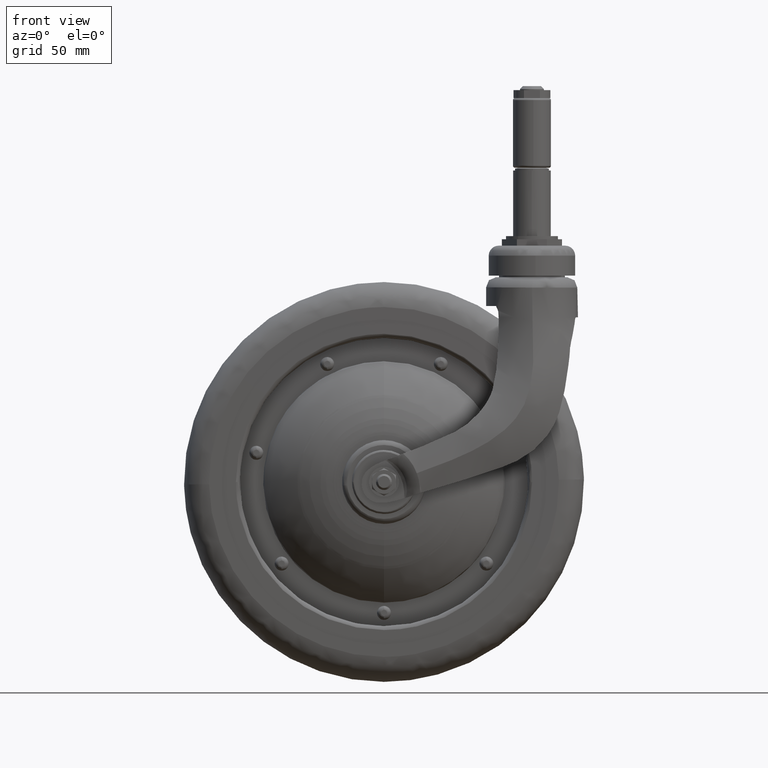
[diagram: clean part render]
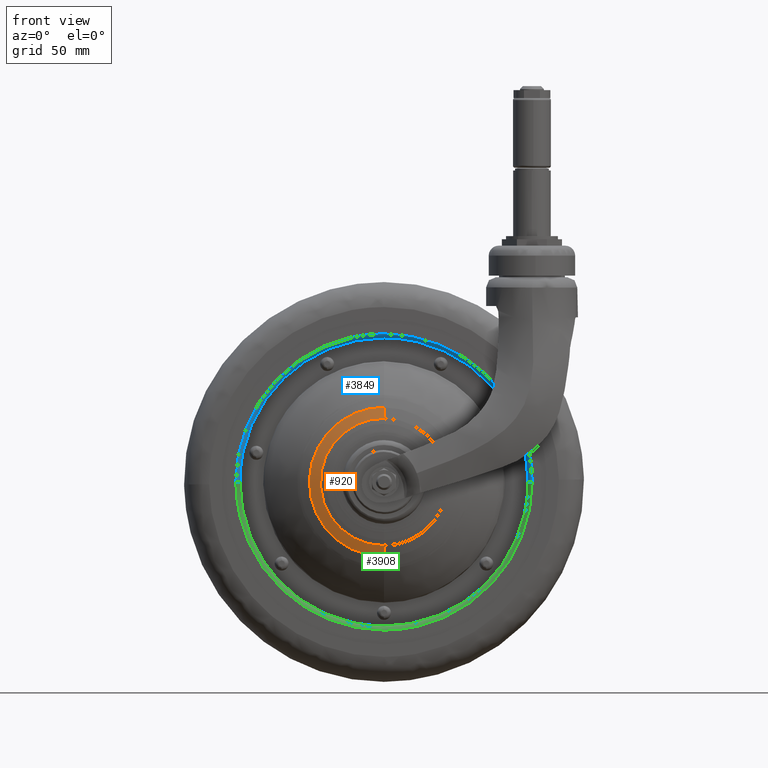
[diagram: same view with three faces highlighted in distinct colors, each labeled with its STEP entity id]
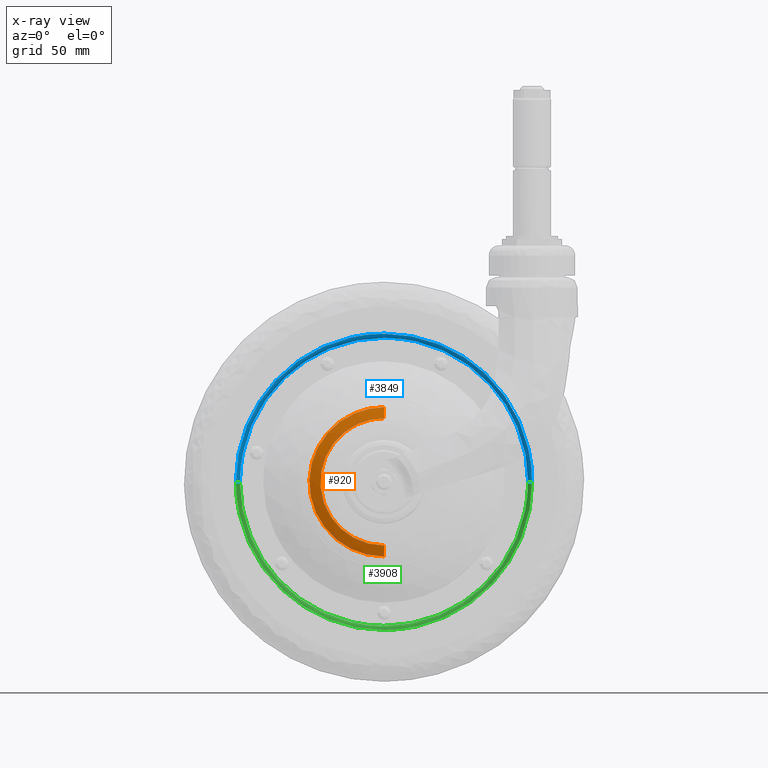
[diagram: x-ray of the same camera — body ghosted, the three highlighted faces saturated]
A machine part, front view with three faces highlighted in distinct colors.
The next image is the same camera in x-ray (body ghosted, the three faces saturated) — at least one of them is partly hidden behind the body in this view.
Their STEP definitions:

[orange] entity #920 — the highlighted face is a freeform B-spline surface patch.
#727=CARTESIAN_POINT('',(0.0,-18.791712680799609,-31.816196024862339));
#728=VERTEX_POINT('',#727);
#743=CARTESIAN_POINT('',(0.0,-18.791712680799609,31.816196024862361));
#744=VERTEX_POINT('',#743);
#758=CARTESIAN_POINT('',(0.0,-18.791712680799609,-31.816196024862339));
#759=CARTESIAN_POINT('',(-2.212513316422858,-18.791712680799620,-31.816554168403272));
#760=CARTESIAN_POINT('',(-5.986633969344221,-18.791712680799620,-31.420779989774829));
#761=CARTESIAN_POINT('',(-11.877662726293281,-18.791712680799620,-29.712815532711360));
#762=CARTESIAN_POINT('',(-16.789912130069421,-18.791712680799620,-27.240036879803711));
#763=CARTESIAN_POINT('',(-21.567377517333838,-18.791712680799620,-23.604990580087740));
#764=CARTESIAN_POINT('',(-25.483861686683380,-18.791712680799630,-19.389328205891410));
#765=CARTESIAN_POINT('',(-28.502204077660490,-18.791712680799581,-14.490324876420290));
#766=CARTESIAN_POINT('',(-30.537432179307778,-18.791712680799751,-9.401084649788302));
#767=CARTESIAN_POINT('',(-31.567709731142021,-18.791712680799289,-4.812702274140866));
#768=CARTESIAN_POINT('',(-31.912940612637680,-18.791712680800249,-0.131265054775183));
#769=CARTESIAN_POINT('',(-31.609052878066791,-18.791712680799300,4.818382943898121));
#770=CARTESIAN_POINT('',(-30.219360545290218,-18.791712680799769,10.671336941823149));
#771=CARTESIAN_POINT('',(-27.476060447682869,-18.791712680799559,16.471557012006159));
#772=CARTESIAN_POINT('',(-23.943232137661191,-18.791712680799598,21.173930181529329));
#773=CARTESIAN_POINT('',(-20.635041127793819,-18.791712680799620,24.323289388503952));
#774=CARTESIAN_POINT('',(-16.658061806654331,-18.791712680799591,27.273348570118639));
#775=CARTESIAN_POINT('',(-12.241294169737710,-18.791712680799730,29.564738800628081));
#776=CARTESIAN_POINT('',(-6.246843337913131,-18.791712680799261,31.382892648082201));
#777=CARTESIAN_POINT('',(-2.342666602031367,-18.791712680800408,31.816636801019289));
#778=CARTESIAN_POINT('',(0.0,-18.791712680799609,31.816196024862361));
#779=B_SPLINE_CURVE_WITH_KNOTS('',3,(#758,#759,#760,#761,#762,#763,#764,#765,#766,#767,#768,#769,#770,#771,#772,#773,#774,#775,#776,#777,#778),.UNSPECIFIED.,.F.,.U.,(4,1,1,1,1,1,1,1,1,1,1,1,1,1,1,1,1,1,4),(-0.000010382482756,6.637522851428585,11.322919814847509,18.350899564902790,23.036292428714820,29.283448663786299,35.530647357752763,40.215942743741323,45.682295283515757,49.586721052954907,54.271975609604212,60.518975265842499,67.547077811491604,73.403831067040372,78.089206242952429,81.212808564086018,88.240882734440675,92.926222615440153,99.954149584418090),.UNSPECIFIED.);
#780=EDGE_CURVE('',#728,#744,#779,.T.);
#838=CARTESIAN_POINT('',(0.0,-16.991232169703757,-37.589018321057615));
#839=CARTESIAN_POINT('',(0.0,-18.099079710110555,-34.616442838877070));
#840=CARTESIAN_POINT('',(0.0,-18.861580186766858,-31.537137041599824));
#841=CARTESIAN_POINT('',(-37.589018321057623,-16.991232169703746,-37.589018321057623));
#842=CARTESIAN_POINT('',(-34.616442838877056,-18.099079710110548,-34.616442838877063));
#843=CARTESIAN_POINT('',(-31.537137041599820,-18.861580186766844,-31.537137041599820));
#844=CARTESIAN_POINT('',(-37.589018321057615,-16.991232169703757,0.0));
#845=CARTESIAN_POINT('',(-34.616442838877070,-18.099079710110555,0.0));
#846=CARTESIAN_POINT('',(-31.537137041599824,-18.861580186766858,0.0));
#847=CARTESIAN_POINT('',(-37.589018321057623,-16.991232169703746,37.589018321057623));
#848=CARTESIAN_POINT('',(-34.616442838877063,-18.099079710110548,34.616442838877056));
#849=CARTESIAN_POINT('',(-31.537137041599820,-18.861580186766844,31.537137041599820));
#850=CARTESIAN_POINT('',(0.0,-16.991232169703757,37.589018321057615));
#851=CARTESIAN_POINT('',(0.0,-18.099079710110555,34.616442838877070));
#852=CARTESIAN_POINT('',(0.0,-18.861580186766858,31.537137041599824));
#860=(BOUNDED_SURFACE()B_SPLINE_SURFACE(2,2,((#838,#841,#844,#847,#850),(#839,#842,#845,#848,#851),(#840,#843,#846,#849,#852)),.UNSPECIFIED.,.F.,.F.,.U.)B_SPLINE_SURFACE_WITH_KNOTS((3,3),(3,2,3),(0.0,6.339457153779224),(0.0,62.279524739491237,124.559049478982500),.UNSPECIFIED.)GEOMETRIC_REPRESENTATION_ITEM()RATIONAL_B_SPLINE_SURFACE(((0.903336312139372,0.638755232005798,0.903336312139372,0.638755232005798,0.903336312139372),(0.901915818765975,0.637750791508838,0.901915818765975,0.637750791508838,0.901915818765975),(0.903429892033574,0.638821402983571,0.903429892033574,0.638821402983571,0.903429892033574)))REPRESENTATION_ITEM('')SURFACE());
#861=CARTESIAN_POINT('',(0.0,-17.091006129118330,-37.319171794389057));
#862=VERTEX_POINT('',#861);
#863=CARTESIAN_POINT('',(0.0,-17.091006129118330,-37.319171794389064));
#864=CARTESIAN_POINT('',(0.0,-18.084090163101585,-34.611795145853058));
#865=CARTESIAN_POINT('',(0.0,-18.791712563030430,-31.816195995052933));
#873=(BOUNDED_CURVE()B_SPLINE_CURVE(2,(#863,#864,#865),.UNSPECIFIED.,.F.,.U.)B_SPLINE_CURVE_WITH_KNOTS((3,3),(0.820640469328591,0.846948958603049),.UNSPECIFIED.)CURVE()GEOMETRIC_REPRESENTATION_ITEM()RATIONAL_B_SPLINE_CURVE((0.903213343733068,0.902043036931894,0.903298424120272))REPRESENTATION_ITEM(''));
#874=EDGE_CURVE('',#862,#728,#873,.T.);
#875=ORIENTED_EDGE('',*,*,#874,.T.);
#876=ORIENTED_EDGE('',*,*,#780,.T.);
#877=CARTESIAN_POINT('',(0.0,-17.091006129341711,37.319171793780072));
#878=VERTEX_POINT('',#877);
#879=CARTESIAN_POINT('',(0.0,-17.091006129341707,37.319171793780072));
#880=CARTESIAN_POINT('',(0.0,-18.084090163181386,34.611795145537798));
#881=CARTESIAN_POINT('',(0.0,-18.791712563030423,31.816195995052951));
#889=(BOUNDED_CURVE()B_SPLINE_CURVE(2,(#879,#880,#881),.UNSPECIFIED.,.F.,.U.)B_SPLINE_CURVE_WITH_KNOTS((3,3),(0.820640469331554,0.846948958603049),.UNSPECIFIED.)CURVE()GEOMETRIC_REPRESENTATION_ITEM()RATIONAL_B_SPLINE_CURVE((0.903213343732804,0.902043036932035,0.903298424120272))REPRESENTATION_ITEM(''));
#890=EDGE_CURVE('',#878,#744,#889,.T.);
#891=ORIENTED_EDGE('',*,*,#890,.F.);
#892=CARTESIAN_POINT('',(0.0,-17.091006129118330,-37.319171794389057));
#893=CARTESIAN_POINT('',(-2.595178402995021,-17.091006129118309,-37.319618656714830));
#894=CARTESIAN_POINT('',(-6.411427941994276,-17.091006129119592,-36.919377553193058));
#895=CARTESIAN_POINT('',(-11.805926213831420,-17.091006129123741,-35.497505592834870));
#896=CARTESIAN_POINT('',(-16.429844422063720,-17.091006129129330,-33.664963185694212));
#897=CARTESIAN_POINT('',(-21.193091430832521,-17.091006129137330,-30.888796174641531));
#898=CARTESIAN_POINT('',(-25.603156435445051,-17.091006129148621,-27.337009050530771));
#899=CARTESIAN_POINT('',(-28.978594776334369,-17.091006129159030,-23.680876518391749));
#900=CARTESIAN_POINT('',(-32.072825506984508,-17.091006129171848,-19.315995549264350));
#901=CARTESIAN_POINT('',(-34.295643545543832,-17.091006129185018,-15.031842263059071));
#902=CARTESIAN_POINT('',(-36.016689324585784,-17.091006129199378,-10.126635345827641));
#903=CARTESIAN_POINT('',(-37.092819867117242,-17.091006129216328,-5.193500486041475));
#904=CARTESIAN_POINT('',(-37.490553195693998,-17.091006129227331,0.689090337576837));
#905=CARTESIAN_POINT('',(-36.840093778681421,-17.091006129253689,7.093138014442690));
#906=CARTESIAN_POINT('',(-35.213882509268473,-17.091006129267271,12.765280392657949));
#907=CARTESIAN_POINT('',(-32.873432317503529,-17.091006129284072,17.916510825918010));
#908=CARTESIAN_POINT('',(-29.596517169504860,-17.091006129297512,23.092238332725039));
#909=CARTESIAN_POINT('',(-25.035739555100040,-17.091006129314160,27.971662705305750));
#910=CARTESIAN_POINT('',(-20.216404720851859,-17.091006129324310,31.499723599465870));
#911=CARTESIAN_POINT('',(-15.051855742156670,-17.091006129332701,34.322044584970563));
#912=CARTESIAN_POINT('',(-8.548541513753717,-17.091006129339728,36.648859557267663));
#913=CARTESIAN_POINT('',(-2.976876010227163,-17.091006129341721,37.319896085041549));
#914=CARTESIAN_POINT('',(0.0,-17.091006129341711,37.319171793780072));
#915=B_SPLINE_CURVE_WITH_KNOTS('',3,(#892,#893,#894,#895,#896,#897,#898,#899,#900,#901,#902,#903,#904,#905,#906,#907,#908,#909,#910,#911,#912,#913,#914),.UNSPECIFIED.,.F.,.U.,(4,1,1,1,1,1,1,1,1,1,1,1,1,1,1,1,1,1,1,1,4),(0.000000572533452,7.785410794613753,11.449355502334139,16.716024920390680,22.669781721854239,27.936524654113569,33.661269892693483,37.554091485739860,43.965752720069283,48.087537512709602,53.125375413000661,59.078758142089093,65.719440488896055,72.360096008520088,76.710864534660203,82.664618282925346,90.679240475264152,96.632977503635800,100.525760941437300,108.311390048731500,117.241817399455000),.UNSPECIFIED.);
#916=EDGE_CURVE('',#862,#878,#915,.T.);
#917=ORIENTED_EDGE('',*,*,#916,.F.);
#918=EDGE_LOOP('',(#875,#876,#891,#917));
#919=FACE_OUTER_BOUND('',#918,.T.);
#920=ADVANCED_FACE('',(#919),#860,.T.);

[blue] entity #3849 — the highlighted face is a freeform B-spline surface patch.
#3555=CARTESIAN_POINT('',(72.100200000000001,-10.000000003916220,-1.420475E-014));
#3556=VERTEX_POINT('',#3555);
#3557=CARTESIAN_POINT('',(53.157847455440717,-10.000000002079050,48.710184704474869));
#3558=VERTEX_POINT('',#3557);
#3559=CARTESIAN_POINT('',(72.100200000000001,-10.000000003916222,-1.420475E-014));
#3560=CARTESIAN_POINT('',(72.100200000000001,-10.000000003154749,28.038230920683553));
#3561=CARTESIAN_POINT('',(53.157847455440915,-10.000000002078901,48.710184704475054));
#3569=(BOUNDED_CURVE()B_SPLINE_CURVE(2,(#3559,#3560,#3561),.UNSPECIFIED.,.F.,.U.)B_SPLINE_CURVE_WITH_KNOTS((3,3),(0.250000000000000,0.368415196637997),.UNSPECIFIED.)CURVE()GEOMETRIC_REPRESENTATION_ITEM()RATIONAL_B_SPLINE_CURVE((1.000000000000000,0.861267967601076,0.853959782374213))REPRESENTATION_ITEM(''));
#3570=EDGE_CURVE('',#3556,#3558,#3569,.T.);
#3635=CARTESIAN_POINT('',(0.0,-10.0,72.100200000000001));
#3636=VERTEX_POINT('',#3635);
#3637=CARTESIAN_POINT('',(53.157847455440717,-10.000000002079046,48.710184704474884));
#3638=CARTESIAN_POINT('',(31.724850827039955,-10.000000000861588,72.100200000000001));
#3639=CARTESIAN_POINT('',(0.0,-10.0,72.100200000000001));
#3647=(BOUNDED_CURVE()B_SPLINE_CURVE(2,(#3637,#3638,#3639),.UNSPECIFIED.,.F.,.U.)B_SPLINE_CURVE_WITH_KNOTS((3,3),(0.368415196637997,0.500000000000000),.UNSPECIFIED.)CURVE()GEOMETRIC_REPRESENTATION_ITEM()RATIONAL_B_SPLINE_CURVE((0.853959782374213,0.845838813585471,1.0))REPRESENTATION_ITEM(''));
#3648=EDGE_CURVE('',#3558,#3636,#3647,.T.);
#3650=CARTESIAN_POINT('',(-72.100200000000001,-10.000000003916220,3.549659E-015));
#3651=VERTEX_POINT('',#3650);
#3652=CARTESIAN_POINT('',(0.0,-10.0,72.100200000000001));
#3653=CARTESIAN_POINT('',(-72.100200000000001,-10.000000001958108,72.100200000000001));
#3654=CARTESIAN_POINT('',(-72.100200000000001,-10.000000003916220,3.549659E-015));
#3662=(BOUNDED_CURVE()B_SPLINE_CURVE(2,(#3652,#3653,#3654),.UNSPECIFIED.,.F.,.U.)B_SPLINE_CURVE_WITH_KNOTS((3,3),(0.500000000000000,0.750000000000000),.UNSPECIFIED.)CURVE()GEOMETRIC_REPRESENTATION_ITEM()RATIONAL_B_SPLINE_CURVE((1.0,0.707106781186547,1.0))REPRESENTATION_ITEM(''));
#3663=EDGE_CURVE('',#3636,#3651,#3662,.T.);
#3763=CARTESIAN_POINT('',(74.238901263575784,-11.995184693075426,-1.363701E-014));
#3764=CARTESIAN_POINT('',(74.238901263575798,-11.995184693075423,74.238901263575741));
#3765=CARTESIAN_POINT('',(1.818269E-014,-11.995184693075426,74.238901263575784));
#3766=CARTESIAN_POINT('',(-74.238901263575741,-11.995184693075423,74.238901263575798));
#3767=CARTESIAN_POINT('',(-74.238901263575784,-11.995184693075426,2.272836E-014));
#3768=CARTESIAN_POINT('',(71.944721420944489,-12.154671503568432,-1.321559E-014));
#3769=CARTESIAN_POINT('',(71.944721420944489,-12.154671503568432,71.944721420944461));
#3770=CARTESIAN_POINT('',(1.762079E-014,-12.154671503568432,71.944721420944489));
#3771=CARTESIAN_POINT('',(-71.944721420944461,-12.154671503568432,71.944721420944489));
#3772=CARTESIAN_POINT('',(-71.944721420944489,-12.154671503568432,2.202599E-014));
#3773=CARTESIAN_POINT('',(72.105067390451026,-9.860551549616593,-1.324505E-014));
#3774=CARTESIAN_POINT('',(72.105067390451012,-9.860551549616591,72.105067390451012));
#3775=CARTESIAN_POINT('',(1.766006E-014,-9.860551549616593,72.105067390451026));
#3776=CARTESIAN_POINT('',(-72.105067390450998,-9.860551549616591,72.105067390451012));
#3777=CARTESIAN_POINT('',(-72.105067390451026,-9.860551549616593,2.207508E-014));
#3785=(BOUNDED_SURFACE()B_SPLINE_SURFACE(2,2,((#3763,#3768,#3773),(#3764,#3769,#3774),(#3765,#3770,#3775),(#3766,#3771,#3776),(#3767,#3772,#3777)),.UNSPECIFIED.,.F.,.F.,.U.)B_SPLINE_SURFACE_WITH_KNOTS((3,2,3),(3,3),(0.0,123.003039036200800,246.006078072401490),(0.0,3.644740888493930),.UNSPECIFIED.)GEOMETRIC_REPRESENTATION_ITEM()RATIONAL_B_SPLINE_SURFACE(((0.910068206218876,0.595552946883686,0.905027191126598),(0.643515399959645,0.421119527297086,0.639950864003831),(0.910068206218876,0.595552946883686,0.905027191126598),(0.643515399959645,0.421119527297086,0.639950864003831),(0.910068206218876,0.595552946883686,0.905027191126598)))REPRESENTATION_ITEM('')SURFACE());
#3786=ORIENTED_EDGE('',*,*,#3648,.F.);
#3787=ORIENTED_EDGE('',*,*,#3570,.F.);
#3788=CARTESIAN_POINT('',(74.100199925063606,-12.0,-7.099579E-015));
#3789=VERTEX_POINT('',#3788);
#3790=CARTESIAN_POINT('',(74.100199925063592,-11.999999999999996,-1.419916E-014));
#3791=CARTESIAN_POINT('',(72.100200003916214,-11.999999925063602,-1.415746E-014));
#3792=CARTESIAN_POINT('',(72.100199999999973,-10.000000003916215,-1.419864E-014));
#3800=(BOUNDED_CURVE()B_SPLINE_CURVE(2,(#3790,#3791,#3792),.UNSPECIFIED.,.F.,.U.)B_SPLINE_CURVE_WITH_KNOTS((3,3),(-1.726807261241216,-0.285995336034769),.UNSPECIFIED.)CURVE()GEOMETRIC_REPRESENTATION_ITEM()RATIONAL_B_SPLINE_CURVE((0.882788762396397,0.622603444888174,0.878205638348498))REPRESENTATION_ITEM(''));
#3801=EDGE_CURVE('',#3789,#3556,#3800,.T.);
#3802=ORIENTED_EDGE('',*,*,#3801,.F.);
#3803=CARTESIAN_POINT('',(0.0,-12.0,74.100200000000001));
#3804=VERTEX_POINT('',#3803);
#3805=CARTESIAN_POINT('',(0.0,-12.0,74.100200000000001));
#3806=CARTESIAN_POINT('',(74.100199962531804,-11.999999999999998,74.100199999999987));
#3807=CARTESIAN_POINT('',(74.100199925063606,-12.0,-7.099579E-015));
#3815=(BOUNDED_CURVE()B_SPLINE_CURVE(2,(#3805,#3806,#3807),.UNSPECIFIED.,.F.,.U.)B_SPLINE_CURVE_WITH_KNOTS((3,3),(0.500000000000000,0.750000000000000),.UNSPECIFIED.)CURVE()GEOMETRIC_REPRESENTATION_ITEM()RATIONAL_B_SPLINE_CURVE((1.0,0.707106781186547,1.0))REPRESENTATION_ITEM(''));
#3816=EDGE_CURVE('',#3804,#3789,#3815,.T.);
#3817=ORIENTED_EDGE('',*,*,#3816,.F.);
#3818=CARTESIAN_POINT('',(-74.100199925063606,-12.0,3.549790E-015));
#3819=VERTEX_POINT('',#3818);
#3820=CARTESIAN_POINT('',(-74.100199925063606,-12.0,3.549790E-015));
#3821=CARTESIAN_POINT('',(-74.100199962531804,-11.999999999999998,74.100199999999987));
#3822=CARTESIAN_POINT('',(0.0,-12.0,74.100200000000001));
#3830=(BOUNDED_CURVE()B_SPLINE_CURVE(2,(#3820,#3821,#3822),.UNSPECIFIED.,.F.,.U.)B_SPLINE_CURVE_WITH_KNOTS((3,3),(0.250000000000000,0.500000000000000),.UNSPECIFIED.)CURVE()GEOMETRIC_REPRESENTATION_ITEM()RATIONAL_B_SPLINE_CURVE((1.0,0.707106781186547,1.0))REPRESENTATION_ITEM(''));
#3831=EDGE_CURVE('',#3819,#3804,#3830,.T.);
#3832=ORIENTED_EDGE('',*,*,#3831,.F.);
#3833=CARTESIAN_POINT('',(-74.100199925063592,-11.999999999999996,7.099579E-015));
#3834=CARTESIAN_POINT('',(-72.100200003916214,-11.999999925063602,7.078729E-015));
#3835=CARTESIAN_POINT('',(-72.100199999999973,-10.000000003916215,7.099319E-015));
#3843=(BOUNDED_CURVE()B_SPLINE_CURVE(2,(#3833,#3834,#3835),.UNSPECIFIED.,.F.,.U.)B_SPLINE_CURVE_WITH_KNOTS((3,3),(-1.726807261241216,-0.285995336034769),.UNSPECIFIED.)CURVE()GEOMETRIC_REPRESENTATION_ITEM()RATIONAL_B_SPLINE_CURVE((0.882788762396397,0.622603444888174,0.878205638348498))REPRESENTATION_ITEM(''));
#3844=EDGE_CURVE('',#3819,#3651,#3843,.T.);
#3845=ORIENTED_EDGE('',*,*,#3844,.T.);
#3846=ORIENTED_EDGE('',*,*,#3663,.F.);
#3847=EDGE_LOOP('',(#3786,#3787,#3802,#3817,#3832,#3845,#3846));
#3848=FACE_OUTER_BOUND('',#3847,.T.);
#3849=ADVANCED_FACE('',(#3848),#3785,.T.);

[green] entity #3908 — the highlighted face is a freeform B-spline surface patch.
#3555=CARTESIAN_POINT('',(72.100200000000001,-10.000000003916220,-1.420475E-014));
#3556=VERTEX_POINT('',#3555);
#3579=CARTESIAN_POINT('',(-53.157847455440709,-10.000000002079050,-48.710184704474877));
#3580=VERTEX_POINT('',#3579);
#3586=CARTESIAN_POINT('',(0.0,-10.0,-72.100200000000001));
#3587=VERTEX_POINT('',#3586);
#3588=CARTESIAN_POINT('',(-53.157847455440709,-10.000000002079046,-48.710184704474884));
#3589=CARTESIAN_POINT('',(-31.724850827039951,-10.000000000861588,-72.100200000000015));
#3590=CARTESIAN_POINT('',(0.0,-10.0,-72.100200000000001));
#3598=(BOUNDED_CURVE()B_SPLINE_CURVE(2,(#3588,#3589,#3590),.UNSPECIFIED.,.F.,.U.)B_SPLINE_CURVE_WITH_KNOTS((3,3),(0.868415196637997,1.0),.UNSPECIFIED.)CURVE()GEOMETRIC_REPRESENTATION_ITEM()RATIONAL_B_SPLINE_CURVE((0.853959782374213,0.845838813585471,1.0))REPRESENTATION_ITEM(''));
#3599=EDGE_CURVE('',#3580,#3587,#3598,.T.);
#3601=CARTESIAN_POINT('',(0.0,-10.0,-72.100200000000001));
#3602=CARTESIAN_POINT('',(72.100199999999958,-10.000000001958107,-72.100199999999987));
#3603=CARTESIAN_POINT('',(72.100200000000001,-10.000000003916222,-1.420475E-014));
#3611=(BOUNDED_CURVE()B_SPLINE_CURVE(2,(#3601,#3602,#3603),.UNSPECIFIED.,.F.,.U.)B_SPLINE_CURVE_WITH_KNOTS((3,3),(0.0,0.250000000000000),.UNSPECIFIED.)CURVE()GEOMETRIC_REPRESENTATION_ITEM()RATIONAL_B_SPLINE_CURVE((1.0,0.707106781186548,1.000000000000000))REPRESENTATION_ITEM(''));
#3612=EDGE_CURVE('',#3587,#3556,#3611,.T.);
#3650=CARTESIAN_POINT('',(-72.100200000000001,-10.000000003916220,3.549659E-015));
#3651=VERTEX_POINT('',#3650);
#3665=CARTESIAN_POINT('',(-72.100200000000001,-10.000000003916220,3.549659E-015));
#3666=CARTESIAN_POINT('',(-72.100200000000001,-10.000000003154751,-28.038230920683564));
#3667=CARTESIAN_POINT('',(-53.157847455440901,-10.000000002078899,-48.710184704475054));
#3675=(BOUNDED_CURVE()B_SPLINE_CURVE(2,(#3665,#3666,#3667),.UNSPECIFIED.,.F.,.U.)B_SPLINE_CURVE_WITH_KNOTS((3,3),(0.750000000000000,0.868415196637997),.UNSPECIFIED.)CURVE()GEOMETRIC_REPRESENTATION_ITEM()RATIONAL_B_SPLINE_CURVE((1.0,0.861267967601076,0.853959782374213))REPRESENTATION_ITEM(''));
#3676=EDGE_CURVE('',#3651,#3580,#3675,.T.);
#3788=CARTESIAN_POINT('',(74.100199925063606,-12.0,-7.099579E-015));
#3789=VERTEX_POINT('',#3788);
#3790=CARTESIAN_POINT('',(74.100199925063592,-11.999999999999996,-1.419916E-014));
#3791=CARTESIAN_POINT('',(72.100200003916214,-11.999999925063602,-1.415746E-014));
#3792=CARTESIAN_POINT('',(72.100199999999973,-10.000000003916215,-1.419864E-014));
#3800=(BOUNDED_CURVE()B_SPLINE_CURVE(2,(#3790,#3791,#3792),.UNSPECIFIED.,.F.,.U.)B_SPLINE_CURVE_WITH_KNOTS((3,3),(-1.726807261241216,-0.285995336034769),.UNSPECIFIED.)CURVE()GEOMETRIC_REPRESENTATION_ITEM()RATIONAL_B_SPLINE_CURVE((0.882788762396397,0.622603444888174,0.878205638348498))REPRESENTATION_ITEM(''));
#3801=EDGE_CURVE('',#3789,#3556,#3800,.T.);
#3818=CARTESIAN_POINT('',(-74.100199925063606,-12.0,3.549790E-015));
#3819=VERTEX_POINT('',#3818);
#3833=CARTESIAN_POINT('',(-74.100199925063592,-11.999999999999996,7.099579E-015));
#3834=CARTESIAN_POINT('',(-72.100200003916214,-11.999999925063602,7.078729E-015));
#3835=CARTESIAN_POINT('',(-72.100199999999973,-10.000000003916215,7.099319E-015));
#3843=(BOUNDED_CURVE()B_SPLINE_CURVE(2,(#3833,#3834,#3835),.UNSPECIFIED.,.F.,.U.)B_SPLINE_CURVE_WITH_KNOTS((3,3),(-1.726807261241216,-0.285995336034769),.UNSPECIFIED.)CURVE()GEOMETRIC_REPRESENTATION_ITEM()RATIONAL_B_SPLINE_CURVE((0.882788762396397,0.622603444888174,0.878205638348498))REPRESENTATION_ITEM(''));
#3844=EDGE_CURVE('',#3819,#3651,#3843,.T.);
#3850=CARTESIAN_POINT('',(-74.238901263575784,-11.995184693075426,4.545672E-015));
#3851=CARTESIAN_POINT('',(-74.238901263575769,-11.995184693075423,-74.238901263575741));
#3852=CARTESIAN_POINT('',(-9.091343E-015,-11.995184693075426,-74.238901263575784));
#3853=CARTESIAN_POINT('',(74.238901263575741,-11.995184693075423,-74.238901263575769));
#3854=CARTESIAN_POINT('',(74.238901263575784,-11.995184693075426,-1.363701E-014));
#3855=CARTESIAN_POINT('',(-71.944721420944489,-12.154671503568432,4.405198E-015));
#3856=CARTESIAN_POINT('',(-71.944721420944461,-12.154671503568432,-71.944721420944461));
#3857=CARTESIAN_POINT('',(-8.810396E-015,-12.154671503568432,-71.944721420944489));
#3858=CARTESIAN_POINT('',(71.944721420944461,-12.154671503568432,-71.944721420944461));
#3859=CARTESIAN_POINT('',(71.944721420944489,-12.154671503568432,-1.321559E-014));
#3860=CARTESIAN_POINT('',(-72.105067390451026,-9.860551549616593,4.415016E-015));
#3861=CARTESIAN_POINT('',(-72.105067390451012,-9.860551549616591,-72.105067390451012));
#3862=CARTESIAN_POINT('',(-8.830032E-015,-9.860551549616593,-72.105067390451026));
#3863=CARTESIAN_POINT('',(72.105067390451012,-9.860551549616591,-72.105067390451012));
#3864=CARTESIAN_POINT('',(72.105067390451026,-9.860551549616593,-1.324505E-014));
#3872=(BOUNDED_SURFACE()B_SPLINE_SURFACE(2,2,((#3850,#3855,#3860),(#3851,#3856,#3861),(#3852,#3857,#3862),(#3853,#3858,#3863),(#3854,#3859,#3864)),.UNSPECIFIED.,.F.,.F.,.U.)B_SPLINE_SURFACE_WITH_KNOTS((3,2,3),(3,3),(0.0,123.003039036200800,246.006078072401490),(0.0,3.644740888493941),.UNSPECIFIED.)GEOMETRIC_REPRESENTATION_ITEM()RATIONAL_B_SPLINE_SURFACE(((0.910068206218876,0.595552946883686,0.905027191126598),(0.643515399959645,0.421119527297086,0.639950864003831),(0.910068206218876,0.595552946883686,0.905027191126598),(0.643515399959645,0.421119527297086,0.639950864003831),(0.910068206218876,0.595552946883686,0.905027191126598)))REPRESENTATION_ITEM('')SURFACE());
#3873=ORIENTED_EDGE('',*,*,#3612,.F.);
#3874=ORIENTED_EDGE('',*,*,#3599,.F.);
#3875=ORIENTED_EDGE('',*,*,#3676,.F.);
#3876=ORIENTED_EDGE('',*,*,#3844,.F.);
#3877=CARTESIAN_POINT('',(0.0,-12.0,-74.100200000000001));
#3878=VERTEX_POINT('',#3877);
#3879=CARTESIAN_POINT('',(0.0,-12.0,-74.100200000000001));
#3880=CARTESIAN_POINT('',(-74.100199962531804,-11.999999999999998,-74.100199999999987));
#3881=CARTESIAN_POINT('',(-74.100199925063606,-12.0,3.549790E-015));
#3889=(BOUNDED_CURVE()B_SPLINE_CURVE(2,(#3879,#3880,#3881),.UNSPECIFIED.,.F.,.U.)B_SPLINE_CURVE_WITH_KNOTS((3,3),(0.0,0.250000000000000),.UNSPECIFIED.)CURVE()GEOMETRIC_REPRESENTATION_ITEM()RATIONAL_B_SPLINE_CURVE((1.0,0.707106781186547,1.0))REPRESENTATION_ITEM(''));
#3890=EDGE_CURVE('',#3878,#3819,#3889,.T.);
#3891=ORIENTED_EDGE('',*,*,#3890,.F.);
#3892=CARTESIAN_POINT('',(74.100199925063606,-12.0,-7.099579E-015));
#3893=CARTESIAN_POINT('',(74.100199962531804,-11.999999999999998,-74.100199999999987));
#3894=CARTESIAN_POINT('',(0.0,-12.0,-74.100200000000001));
#3902=(BOUNDED_CURVE()B_SPLINE_CURVE(2,(#3892,#3893,#3894),.UNSPECIFIED.,.F.,.U.)B_SPLINE_CURVE_WITH_KNOTS((3,3),(0.750000000000000,1.0),.UNSPECIFIED.)CURVE()GEOMETRIC_REPRESENTATION_ITEM()RATIONAL_B_SPLINE_CURVE((1.0,0.707106781186547,1.0))REPRESENTATION_ITEM(''));
#3903=EDGE_CURVE('',#3789,#3878,#3902,.T.);
#3904=ORIENTED_EDGE('',*,*,#3903,.F.);
#3905=ORIENTED_EDGE('',*,*,#3801,.T.);
#3906=EDGE_LOOP('',(#3873,#3874,#3875,#3876,#3891,#3904,#3905));
#3907=FACE_OUTER_BOUND('',#3906,.T.);
#3908=ADVANCED_FACE('',(#3907),#3872,.T.);